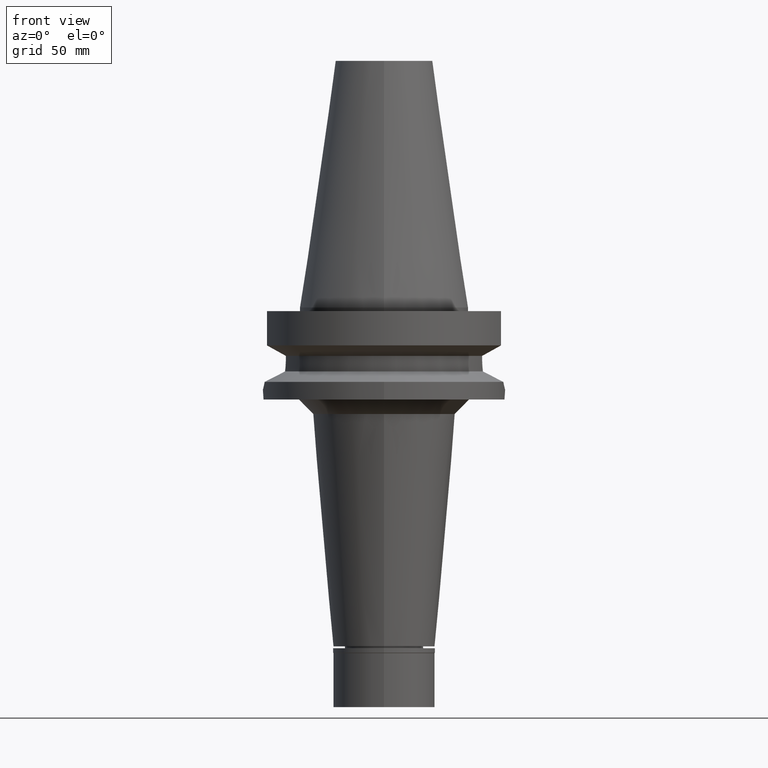
[diagram: clean part render]
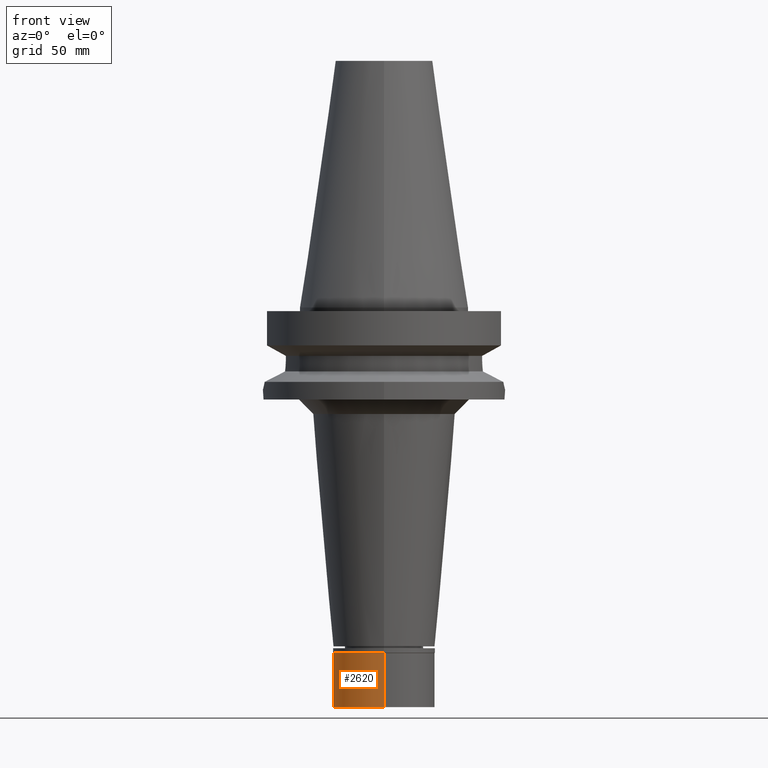
[diagram: same view with one face highlighted and labeled with its STEP entity id]
A machine part, front view. The second image highlights one B-rep face of the part: STEP entity #2620.
In plain terms, the highlighted cylindrical surface (partial cylindrical patch) has radius 21 mm, axis along (0, 0, -1).
Its self-contained STEP definition (entity closure, byte-faithful):
#33 = AXIS2_PLACEMENT_3D ( 'NONE', #2212, #1966, #1555 ) ;
#42 = FACE_OUTER_BOUND ( 'NONE', #2532, .T. ) ;
#176 = EDGE_CURVE ( 'NONE', #2295, #1004, #2316, .T. ) ;
#512 = AXIS2_PLACEMENT_3D ( 'NONE', #1603, #548, #2783 ) ;
#520 = AXIS2_PLACEMENT_3D ( 'NONE', #2974, #782, #2067 ) ;
#548 = DIRECTION ( 'NONE',  ( 0.0000000000000000000, 0.0000000000000000000, -1.000000000000000000 ) ) ;
#690 = DIRECTION ( 'NONE',  ( 0.0000000000000000000, 0.0000000000000000000, -1.000000000000000000 ) ) ;
#706 = ORIENTED_EDGE ( 'NONE', *, *, #176, .T. ) ;
#782 = DIRECTION ( 'NONE',  ( 0.0000000000000000000, 0.0000000000000000000, -1.000000000000000000 ) ) ;
#887 = ORIENTED_EDGE ( 'NONE', *, *, #2899, .T. ) ;
#922 = VERTEX_POINT ( 'NONE', #1812 ) ;
#1004 = VERTEX_POINT ( 'NONE', #1127 ) ;
#1125 = CARTESIAN_POINT ( 'NONE',  ( 0.0000000000000000000, 21.00000000000000000, -24.29999999999999716 ) ) ;
#1127 = CARTESIAN_POINT ( 'NONE',  ( 0.0000000000000000000, -21.00000000000000000, -24.29999999999999716 ) ) ;
#1276 = VERTEX_POINT ( 'NONE', #2930 ) ;
#1306 = CARTESIAN_POINT ( 'NONE',  ( 0.0000000000000000000, -21.00000000000000000, -2.000000000000000000 ) ) ;
#1441 = EDGE_CURVE ( 'NONE', #922, #1276, #1975, .T. ) ;
#1555 = DIRECTION ( 'NONE',  ( 0.0000000000000000000, 1.000000000000000000, 0.0000000000000000000 ) ) ;
#1603 = CARTESIAN_POINT ( 'NONE',  ( 0.0000000000000000000, 0.0000000000000000000, -2.000000000000000000 ) ) ;
#1691 = CARTESIAN_POINT ( 'NONE',  ( 0.0000000000000000000, 21.00000000000000000, -2.000000000000000000 ) ) ;
#1806 = CYLINDRICAL_SURFACE ( 'NONE', #520, 21.00000000000000000 ) ;
#1812 = CARTESIAN_POINT ( 'NONE',  ( 0.0000000000000000000, -21.00000000000000000, -2.000000000000000000 ) ) ;
#1818 = ORIENTED_EDGE ( 'NONE', *, *, #1441, .T. ) ;
#1948 = EDGE_CURVE ( 'NONE', #922, #1004, #2546, .T. ) ;
#1966 = DIRECTION ( 'NONE',  ( 0.0000000000000000000, 0.0000000000000000000, 1.000000000000000000 ) ) ;
#1975 = CIRCLE ( 'NONE', #512, 21.00000000000000000 ) ;
#2039 = VECTOR ( 'NONE', #2742, 1000.000000000000000 ) ;
#2067 = DIRECTION ( 'NONE',  ( 0.0000000000000000000, -1.000000000000000000, 0.0000000000000000000 ) ) ;
#2212 = CARTESIAN_POINT ( 'NONE',  ( 0.0000000000000000000, 0.0000000000000000000, -24.29999999999999716 ) ) ;
#2295 = VERTEX_POINT ( 'NONE', #1125 ) ;
#2316 = CIRCLE ( 'NONE', #33, 21.00000000000000000 ) ;
#2428 = LINE ( 'NONE', #1691, #2871 ) ;
#2532 = EDGE_LOOP ( 'NONE', ( #706, #2887, #1818, #887 ) ) ;
#2546 = LINE ( 'NONE', #1306, #2039 ) ;
#2620 = ADVANCED_FACE ( 'NONE', ( #42 ), #1806, .T. ) ;
#2742 = DIRECTION ( 'NONE',  ( 0.0000000000000000000, 0.0000000000000000000, -1.000000000000000000 ) ) ;
#2783 = DIRECTION ( 'NONE',  ( 0.0000000000000000000, -1.000000000000000000, 0.0000000000000000000 ) ) ;
#2871 = VECTOR ( 'NONE', #690, 1000.000000000000000 ) ;
#2887 = ORIENTED_EDGE ( 'NONE', *, *, #1948, .F. ) ;
#2899 = EDGE_CURVE ( 'NONE', #1276, #2295, #2428, .T. ) ;
#2930 = CARTESIAN_POINT ( 'NONE',  ( 0.0000000000000000000, 21.00000000000000000, -2.000000000000000000 ) ) ;
#2974 = CARTESIAN_POINT ( 'NONE',  ( 0.0000000000000000000, 0.0000000000000000000, 0.0000000000000000000 ) ) ;